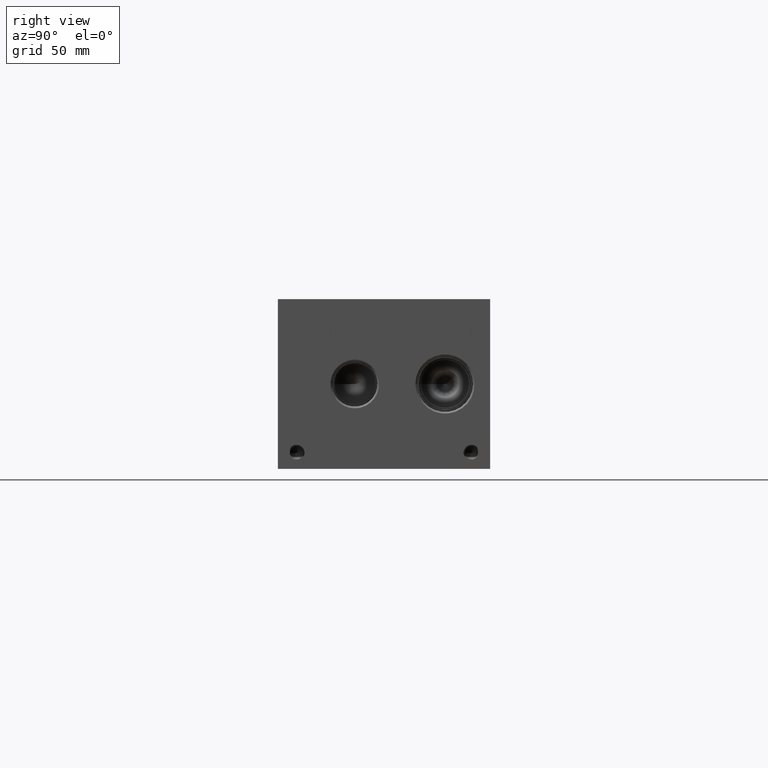
[diagram: clean part render]
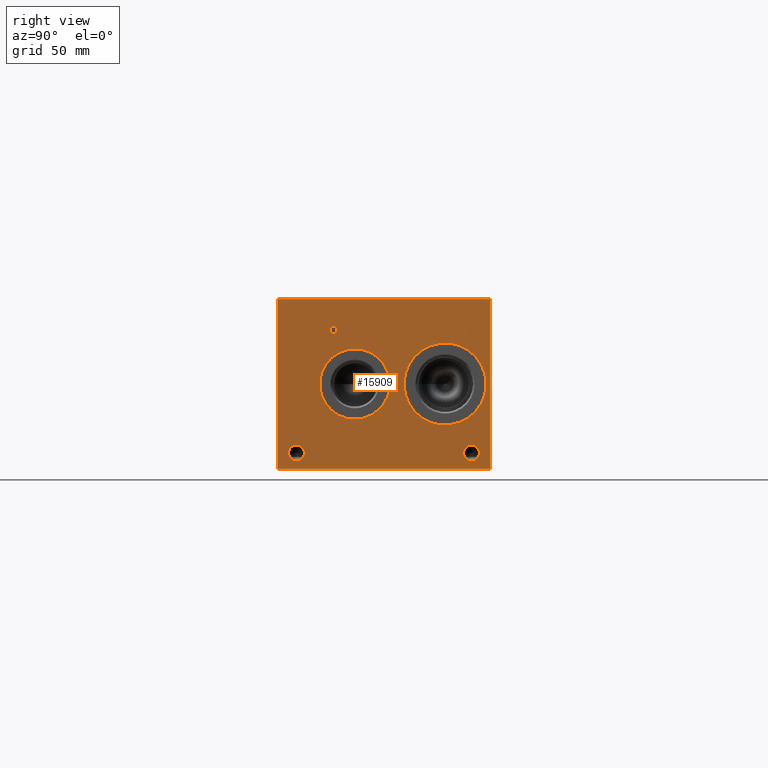
[diagram: same view with one face highlighted and labeled with its STEP entity id]
A machine part, right view. The second image highlights one B-rep face of the part: STEP entity #15909.
In plain terms, the highlighted planar face has unit normal (1, 0, 0).
Its self-contained STEP definition (entity closure, byte-faithful):
#283=CIRCLE('',#16791,4.7625);
#284=CIRCLE('',#16792,4.7625);
#285=CIRCLE('',#16793,4.7625);
#286=CIRCLE('',#16794,4.7625);
#287=CIRCLE('',#16795,21.0185);
#288=CIRCLE('',#16796,21.0185);
#289=CIRCLE('',#16797,24.5618);
#290=CIRCLE('',#16798,24.5618);
#863=FACE_BOUND('',#2398,.T.);
#864=FACE_BOUND('',#2399,.T.);
#865=FACE_BOUND('',#2400,.T.);
#866=FACE_BOUND('',#2401,.T.);
#867=FACE_BOUND('',#2402,.T.);
#868=FACE_BOUND('',#2403,.T.);
#1053=B_SPLINE_CURVE_WITH_KNOTS('',2,(#22282,#22283,#22284,#22285),
 .UNSPECIFIED.,.F.,.F.,(3,1,3),(0.,1.,2.),.UNSPECIFIED.);
#1055=B_SPLINE_CURVE_WITH_KNOTS('',2,(#22303,#22304,#22305,#22306),
 .UNSPECIFIED.,.F.,.F.,(3,1,3),(0.,1.,2.),.UNSPECIFIED.);
#1057=B_SPLINE_CURVE_WITH_KNOTS('',2,(#22352,#22353,#22354,#22355),
 .UNSPECIFIED.,.F.,.F.,(3,1,3),(0.,1.,2.),.UNSPECIFIED.);
#1059=B_SPLINE_CURVE_WITH_KNOTS('',2,(#22370,#22371,#22372,#22373),
 .UNSPECIFIED.,.F.,.F.,(3,1,3),(0.,1.,2.),.UNSPECIFIED.);
#1521=FACE_OUTER_BOUND('',#2397,.T.);
#2397=EDGE_LOOP('',(#10384,#10385,#10386,#10387));
#2398=EDGE_LOOP('',(#10388,#10389,#10390,#10391,#10392,#10393,#10394,#10395));
#2399=EDGE_LOOP('',(#10396,#10397));
#2400=EDGE_LOOP('',(#10398,#10399));
#2401=EDGE_LOOP('',(#10400,#10401));
#2402=EDGE_LOOP('',(#10402,#10403));
#2403=EDGE_LOOP('',(#10404,#10405,#10406,#10407,#10408,#10409,#10410,#10411,
#10412));
#3428=LINE('',#22132,#4870);
#3432=LINE('',#22140,#4874);
#3435=LINE('',#22146,#4877);
#3438=LINE('',#22152,#4880);
#3441=LINE('',#22158,#4883);
#3444=LINE('',#22164,#4886);
#3447=LINE('',#22170,#4889);
#3450=LINE('',#22175,#4892);
#3468=LINE('',#22315,#4910);
#3471=LINE('',#22321,#4913);
#3474=LINE('',#22327,#4916);
#3477=LINE('',#22333,#4919);
#3480=LINE('',#22339,#4922);
#3484=LINE('',#22382,#4926);
#3485=LINE('',#22384,#4927);
#3486=LINE('',#22386,#4928);
#3487=LINE('',#22387,#4929);
#4870=VECTOR('',#18080,10.);
#4874=VECTOR('',#18086,10.);
#4877=VECTOR('',#18091,10.);
#4880=VECTOR('',#18096,10.);
#4883=VECTOR('',#18101,10.);
#4886=VECTOR('',#18106,10.);
#4889=VECTOR('',#18111,10.);
#4892=VECTOR('',#18116,10.);
#4910=VECTOR('',#18144,10.);
#4913=VECTOR('',#18149,10.);
#4916=VECTOR('',#18154,10.);
#4919=VECTOR('',#18159,10.);
#4922=VECTOR('',#18164,10.);
#4926=VECTOR('',#18172,10.);
#4927=VECTOR('',#18173,10.);
#4928=VECTOR('',#18174,10.);
#4929=VECTOR('',#18175,10.);
#6312=VERTEX_POINT('',#22130);
#6313=VERTEX_POINT('',#22131);
#6316=VERTEX_POINT('',#22139);
#6318=VERTEX_POINT('',#22145);
#6320=VERTEX_POINT('',#22151);
#6322=VERTEX_POINT('',#22157);
#6324=VERTEX_POINT('',#22163);
#6326=VERTEX_POINT('',#22169);
#6342=VERTEX_POINT('',#22280);
#6343=VERTEX_POINT('',#22281);
#6346=VERTEX_POINT('',#22302);
#6348=VERTEX_POINT('',#22314);
#6350=VERTEX_POINT('',#22320);
#6352=VERTEX_POINT('',#22326);
#6354=VERTEX_POINT('',#22332);
#6356=VERTEX_POINT('',#22338);
#6358=VERTEX_POINT('',#22351);
#6360=VERTEX_POINT('',#22380);
#6361=VERTEX_POINT('',#22381);
#6362=VERTEX_POINT('',#22383);
#6363=VERTEX_POINT('',#22385);
#6364=VERTEX_POINT('',#22388);
#6365=VERTEX_POINT('',#22389);
#6366=VERTEX_POINT('',#22392);
#6367=VERTEX_POINT('',#22393);
#6368=VERTEX_POINT('',#22396);
#6369=VERTEX_POINT('',#22397);
#6370=VERTEX_POINT('',#22400);
#6371=VERTEX_POINT('',#22401);
#7943=EDGE_CURVE('',#6312,#6313,#3428,.T.);
#7947=EDGE_CURVE('',#6316,#6312,#3432,.T.);
#7950=EDGE_CURVE('',#6318,#6316,#3435,.T.);
#7953=EDGE_CURVE('',#6320,#6318,#3438,.T.);
#7956=EDGE_CURVE('',#6322,#6320,#3441,.T.);
#7959=EDGE_CURVE('',#6324,#6322,#3444,.T.);
#7962=EDGE_CURVE('',#6326,#6324,#3447,.T.);
#7965=EDGE_CURVE('',#6313,#6326,#3450,.T.);
#7988=EDGE_CURVE('',#6342,#6343,#1053,.T.);
#7992=EDGE_CURVE('',#6346,#6342,#1055,.T.);
#7995=EDGE_CURVE('',#6348,#6346,#3468,.T.);
#7998=EDGE_CURVE('',#6350,#6348,#3471,.T.);
#8001=EDGE_CURVE('',#6352,#6350,#3474,.T.);
#8004=EDGE_CURVE('',#6354,#6352,#3477,.T.);
#8007=EDGE_CURVE('',#6356,#6354,#3480,.T.);
#8010=EDGE_CURVE('',#6358,#6356,#1057,.T.);
#8013=EDGE_CURVE('',#6343,#6358,#1059,.T.);
#8015=EDGE_CURVE('',#6360,#6361,#3484,.T.);
#8016=EDGE_CURVE('',#6361,#6362,#3485,.T.);
#8017=EDGE_CURVE('',#6363,#6362,#3486,.T.);
#8018=EDGE_CURVE('',#6360,#6363,#3487,.T.);
#8019=EDGE_CURVE('',#6364,#6365,#283,.T.);
#8020=EDGE_CURVE('',#6365,#6364,#284,.T.);
#8021=EDGE_CURVE('',#6366,#6367,#285,.T.);
#8022=EDGE_CURVE('',#6367,#6366,#286,.T.);
#8023=EDGE_CURVE('',#6368,#6369,#287,.T.);
#8024=EDGE_CURVE('',#6369,#6368,#288,.T.);
#8025=EDGE_CURVE('',#6370,#6371,#289,.T.);
#8026=EDGE_CURVE('',#6371,#6370,#290,.T.);
#10384=ORIENTED_EDGE('',*,*,#8015,.T.);
#10385=ORIENTED_EDGE('',*,*,#8016,.T.);
#10386=ORIENTED_EDGE('',*,*,#8017,.F.);
#10387=ORIENTED_EDGE('',*,*,#8018,.F.);
#10388=ORIENTED_EDGE('',*,*,#7943,.T.);
#10389=ORIENTED_EDGE('',*,*,#7965,.T.);
#10390=ORIENTED_EDGE('',*,*,#7962,.T.);
#10391=ORIENTED_EDGE('',*,*,#7959,.T.);
#10392=ORIENTED_EDGE('',*,*,#7956,.T.);
#10393=ORIENTED_EDGE('',*,*,#7953,.T.);
#10394=ORIENTED_EDGE('',*,*,#7950,.T.);
#10395=ORIENTED_EDGE('',*,*,#7947,.T.);
#10396=ORIENTED_EDGE('',*,*,#8019,.T.);
#10397=ORIENTED_EDGE('',*,*,#8020,.T.);
#10398=ORIENTED_EDGE('',*,*,#8021,.T.);
#10399=ORIENTED_EDGE('',*,*,#8022,.T.);
#10400=ORIENTED_EDGE('',*,*,#8023,.T.);
#10401=ORIENTED_EDGE('',*,*,#8024,.T.);
#10402=ORIENTED_EDGE('',*,*,#8025,.T.);
#10403=ORIENTED_EDGE('',*,*,#8026,.T.);
#10404=ORIENTED_EDGE('',*,*,#7988,.T.);
#10405=ORIENTED_EDGE('',*,*,#8013,.T.);
#10406=ORIENTED_EDGE('',*,*,#8010,.T.);
#10407=ORIENTED_EDGE('',*,*,#8007,.T.);
#10408=ORIENTED_EDGE('',*,*,#8004,.T.);
#10409=ORIENTED_EDGE('',*,*,#8001,.T.);
#10410=ORIENTED_EDGE('',*,*,#7998,.T.);
#10411=ORIENTED_EDGE('',*,*,#7995,.T.);
#10412=ORIENTED_EDGE('',*,*,#7992,.T.);
#14924=PLANE('',#16790);
#15909=ADVANCED_FACE('',(#1521,#863,#864,#865,#866,#867,#868),#14924,.T.);
#16790=AXIS2_PLACEMENT_3D('',#22379,#18170,#18171);
#16791=AXIS2_PLACEMENT_3D('',#22390,#18176,#18177);
#16792=AXIS2_PLACEMENT_3D('',#22391,#18178,#18179);
#16793=AXIS2_PLACEMENT_3D('',#22394,#18180,#18181);
#16794=AXIS2_PLACEMENT_3D('',#22395,#18182,#18183);
#16795=AXIS2_PLACEMENT_3D('',#22398,#18184,#18185);
#16796=AXIS2_PLACEMENT_3D('',#22399,#18186,#18187);
#16797=AXIS2_PLACEMENT_3D('',#22402,#18188,#18189);
#16798=AXIS2_PLACEMENT_3D('',#22403,#18190,#18191);
#18080=DIRECTION('',(0.,-1.,0.));
#18086=DIRECTION('',(0.,0.,-1.));
#18091=DIRECTION('',(0.,-1.,0.));
#18096=DIRECTION('',(0.,0.,-1.));
#18101=DIRECTION('',(0.,1.,0.));
#18106=DIRECTION('',(0.,0.,1.));
#18111=DIRECTION('',(0.,-1.,0.));
#18116=DIRECTION('',(0.,0.,1.));
#18144=DIRECTION('',(0.,1.,0.));
#18149=DIRECTION('',(0.,0.,1.));
#18154=DIRECTION('',(0.,-1.,0.));
#18159=DIRECTION('',(0.,0.,-1.));
#18164=DIRECTION('',(0.,-1.,0.));
#18170=DIRECTION('center_axis',(1.,0.,0.));
#18171=DIRECTION('ref_axis',(0.,1.,0.));
#18172=DIRECTION('',(0.,1.,0.));
#18173=DIRECTION('',(0.,0.,1.));
#18174=DIRECTION('',(0.,1.,0.));
#18175=DIRECTION('',(0.,0.,1.));
#18176=DIRECTION('center_axis',(-1.,0.,0.));
#18177=DIRECTION('ref_axis',(0.,1.,0.));
#18178=DIRECTION('center_axis',(-1.,0.,0.));
#18179=DIRECTION('ref_axis',(0.,1.,0.));
#18180=DIRECTION('center_axis',(-1.,0.,0.));
#18181=DIRECTION('ref_axis',(0.,1.,0.));
#18182=DIRECTION('center_axis',(-1.,0.,0.));
#18183=DIRECTION('ref_axis',(0.,1.,0.));
#18184=DIRECTION('center_axis',(-1.,0.,0.));
#18185=DIRECTION('ref_axis',(0.,0.,-1.));
#18186=DIRECTION('center_axis',(-1.,0.,0.));
#18187=DIRECTION('ref_axis',(0.,0.,-1.));
#18188=DIRECTION('center_axis',(-1.,0.,0.));
#18189=DIRECTION('ref_axis',(0.,1.,0.));
#18190=DIRECTION('center_axis',(-1.,0.,0.));
#18191=DIRECTION('ref_axis',(0.,1.,0.));
#22130=CARTESIAN_POINT('',(406.4,115.694365271453,78.74));
#22131=CARTESIAN_POINT('',(406.4,114.850443079914,78.74));
#22132=CARTESIAN_POINT('',(406.4,57.8471826357265,78.74));
#22139=CARTESIAN_POINT('',(406.4,115.694365271453,84.3387033194816));
#22140=CARTESIAN_POINT('',(406.4,115.694365271453,42.1693516597408));
#22145=CARTESIAN_POINT('',(406.4,117.824754218388,84.3387033194816));
#22146=CARTESIAN_POINT('',(406.4,58.912377109194,84.3387033194816));
#22151=CARTESIAN_POINT('',(406.4,117.824754218388,85.0899999046325));
#22152=CARTESIAN_POINT('',(406.4,117.824754218388,42.5449999523163));
#22157=CARTESIAN_POINT('',(406.4,112.720054132978,85.0899999046325));
#22158=CARTESIAN_POINT('',(406.4,56.3600270664892,85.0899999046325));
#22163=CARTESIAN_POINT('',(406.4,112.720054132978,84.3387033194816));
#22164=CARTESIAN_POINT('',(406.4,112.720054132978,42.1693516597408));
#22169=CARTESIAN_POINT('',(406.4,114.850443079914,84.3387033194816));
#22170=CARTESIAN_POINT('',(406.4,57.4252215399568,84.3387033194816));
#22175=CARTESIAN_POINT('',(406.4,114.850443079914,39.37));
#22280=CARTESIAN_POINT('',(406.4,34.6853672023594,84.6937681439707));
#22281=CARTESIAN_POINT('',(406.4,35.441809654532,83.1757373726039));
#22282=CARTESIAN_POINT('Ctrl Pts',(406.4,34.6853672023594,84.6937681439707));
#22283=CARTESIAN_POINT('Ctrl Pts',(406.4,35.0404320268486,84.4519123939563));
#22284=CARTESIAN_POINT('Ctrl Pts',(406.4,35.441809654532,83.7057616758269));
#22285=CARTESIAN_POINT('Ctrl Pts',(406.4,35.441809654532,83.1757373726039));
#22302=CARTESIAN_POINT('',(406.4,33.0232521543883,85.0899999046325));
#22303=CARTESIAN_POINT('Ctrl Pts',(406.4,33.0232521543883,85.0899999046325));
#22304=CARTESIAN_POINT('Ctrl Pts',(406.4,33.5892975267624,85.0899999046325));
#22305=CARTESIAN_POINT('Ctrl Pts',(406.4,34.381761048086,84.9047486918556));
#22306=CARTESIAN_POINT('Ctrl Pts',(406.4,34.6853672023594,84.6937681439707));
#22314=CARTESIAN_POINT('',(406.4,31.4280333776978,85.0899999046325));
#22315=CARTESIAN_POINT('',(406.4,15.7140166888489,85.0899999046325));
#22320=CARTESIAN_POINT('',(406.4,31.4280333776978,78.74));
#22321=CARTESIAN_POINT('',(406.4,31.4280333776978,39.37));
#22326=CARTESIAN_POINT('',(406.4,32.2719555692373,78.74));
#22327=CARTESIAN_POINT('',(406.4,16.1359777846186,78.74));
#22332=CARTESIAN_POINT('',(406.4,32.2719555692373,81.1070988299279));
#22333=CARTESIAN_POINT('',(406.4,32.2719555692373,40.5535494149639));
#22338=CARTESIAN_POINT('',(406.4,32.9872310852372,81.1070988299279));
#22339=CARTESIAN_POINT('',(406.4,16.4936155426186,81.1070988299279));
#22351=CARTESIAN_POINT('',(406.4,34.8860560162011,81.7657698086904));
#22352=CARTESIAN_POINT('Ctrl Pts',(406.4,34.8860560162011,81.7657698086904));
#22353=CARTESIAN_POINT('Ctrl Pts',(406.4,34.5567205268198,81.4415801863307));
#22354=CARTESIAN_POINT('Ctrl Pts',(406.4,33.6664855320861,81.1070988299279));
#22355=CARTESIAN_POINT('Ctrl Pts',(406.4,32.9872310852372,81.1070988299279));
#22370=CARTESIAN_POINT('Ctrl Pts',(406.4,35.441809654532,83.1757373726039));
#22371=CARTESIAN_POINT('Ctrl Pts',(406.4,35.441809654532,82.7640680108774));
#22372=CARTESIAN_POINT('Ctrl Pts',(406.4,35.1484952343018,82.0230631597695));
#22373=CARTESIAN_POINT('Ctrl Pts',(406.4,34.8860560162011,81.7657698086904));
#22379=CARTESIAN_POINT('Origin',(406.4,0.,0.));
#22380=CARTESIAN_POINT('',(406.4,0.,0.));
#22381=CARTESIAN_POINT('',(406.4,127.,0.));
#22382=CARTESIAN_POINT('',(406.4,0.,0.));
#22383=CARTESIAN_POINT('',(406.4,127.,101.6));
#22384=CARTESIAN_POINT('',(406.4,127.,0.));
#22385=CARTESIAN_POINT('',(406.4,0.,101.6));
#22386=CARTESIAN_POINT('',(406.4,0.,101.6));
#22387=CARTESIAN_POINT('',(406.4,0.,0.));
#22388=CARTESIAN_POINT('',(406.4,120.6373,9.525));
#22389=CARTESIAN_POINT('',(406.4,111.1123,9.525));
#22390=CARTESIAN_POINT('Origin',(406.4,115.8748,9.525));
#22391=CARTESIAN_POINT('Origin',(406.4,115.8748,9.525));
#22392=CARTESIAN_POINT('',(406.4,15.8623,9.525));
#22393=CARTESIAN_POINT('',(406.4,6.3373,9.525));
#22394=CARTESIAN_POINT('Origin',(406.4,11.0998,9.525));
#22395=CARTESIAN_POINT('Origin',(406.4,11.0998,9.525));
#22396=CARTESIAN_POINT('',(406.4,46.0248,29.7815));
#22397=CARTESIAN_POINT('',(406.4,46.0248,71.8185));
#22398=CARTESIAN_POINT('Origin',(406.4,46.0248,50.8));
#22399=CARTESIAN_POINT('Origin',(406.4,46.0248,50.8));
#22400=CARTESIAN_POINT('',(406.4,124.587,50.8));
#22401=CARTESIAN_POINT('',(406.4,75.4634,50.8));
#22402=CARTESIAN_POINT('Origin',(406.4,100.0252,50.8));
#22403=CARTESIAN_POINT('Origin',(406.4,100.0252,50.8));